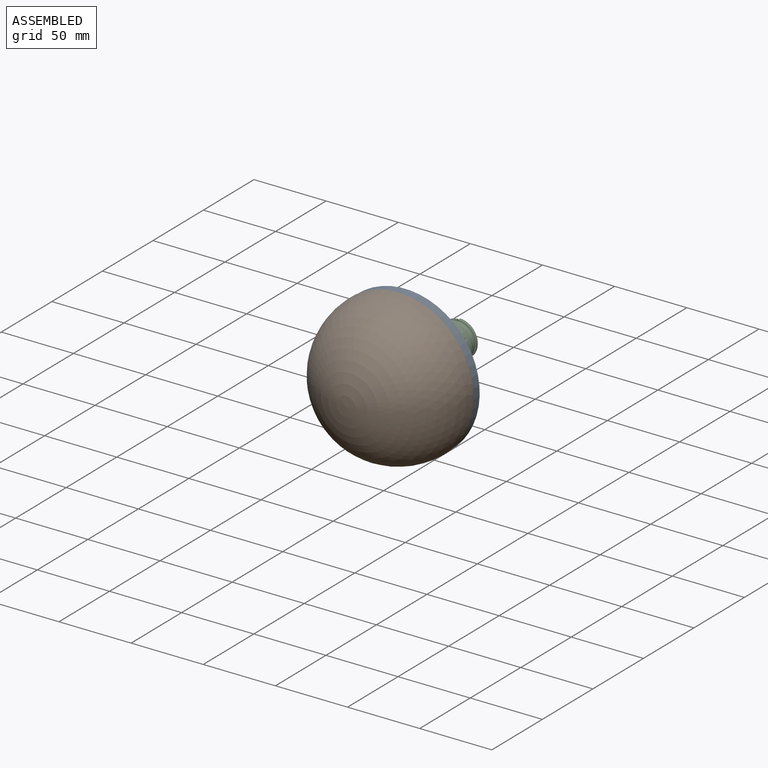
[diagram: assembled view]
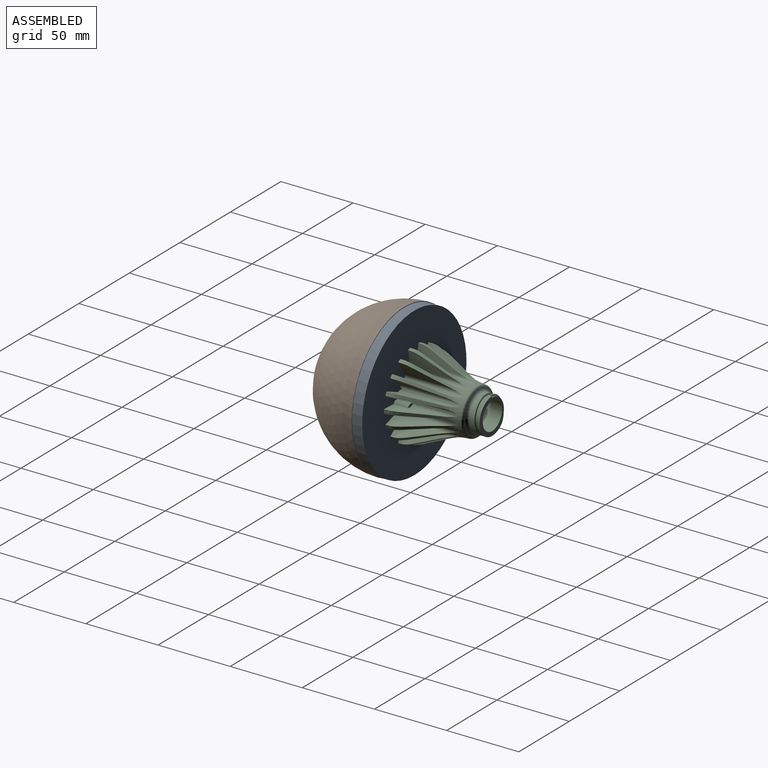
[diagram: assembled view, second angle]
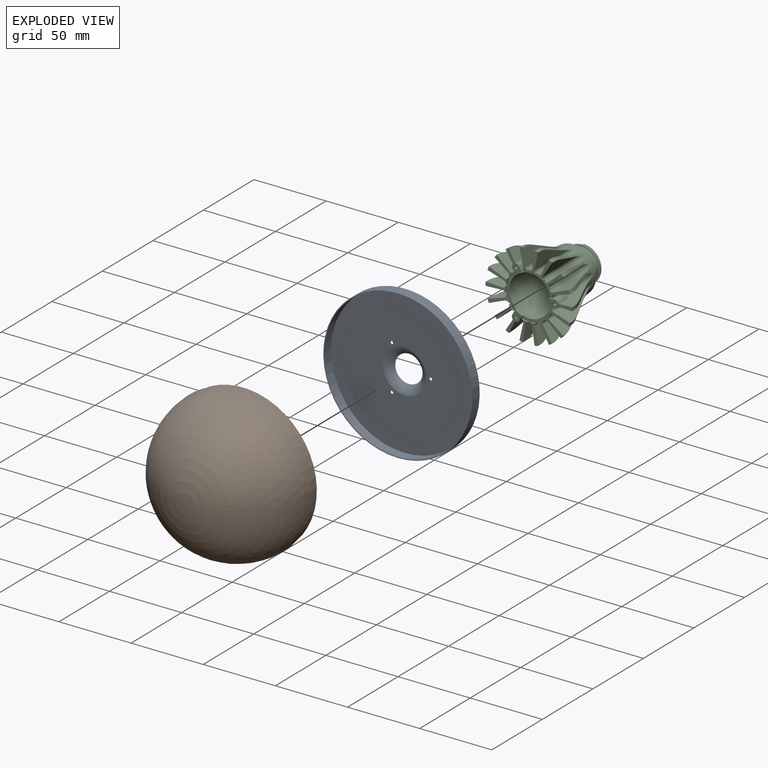
[diagram: exploded view]
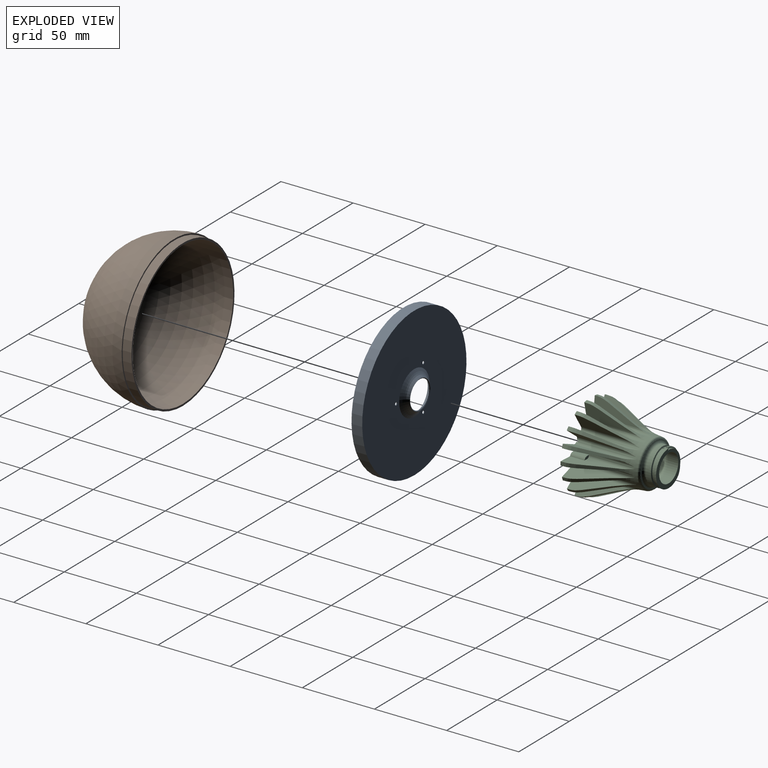
[diagram: exploded view, second angle]
ASSEMBLY  parts=3 mates=4
PART A: 11 faces, bbox 103.2x16.2x103.2 mm
  f0: cylinder r=1mm len=2mm, axis (0,1,0), area 3.8mm2, adj f4,f8
  f1: cylinder r=1mm len=2mm, axis (0,1,0), area 3.8mm2, adj f4,f8
  f2: plane 103.2x103.2mm, normal (0,-1,0), area 193.4mm2, adj f3,f9
  f3: cylinder r=51mm len=102mm, axis (0,-1,0), area 2183.2mm2, adj f2,f4
  f4: plane 102x102mm, normal (0,-1,0), area 7464mm2, adj f0,f1,f3,f5,f10
  f5: torus R=17.92mm, axis (0,-1,0), area 529.6mm2, adj f4,f6
  f6: cone r=9.49mm half-angle=58.9deg, axis (0,1,0), area 36.7mm2, adj f5,f7
  f7: torus R=17.92mm, axis (0,-1,0), area 503.8mm2, adj f6,f8
  f8: plane 103.2x103.2mm, normal (0,1,0), area 7648.4mm2, adj f0,f1,f7,f9,f10
  f9: cylinder r=51.6mm len=103.2mm, axis (0,-1,0), area 2403.4mm2, adj f2,f8
  f10: cylinder r=1mm len=2mm, axis (0,1,0), area 3.8mm2, adj f4,f8
PART B: 6 faces, bbox 104x58x104 mm
  f0: sphere r=49.75mm, area 15551.3mm2, adj f1
  f1: cylinder r=49.75mm len=99.5mm, axis (0,-1,0), area 1875.5mm2, adj f0,f2
  f2: plane 102x102mm, normal (0,1,0), area 395.6mm2, adj f1,f3
  f3: cylinder r=51mm len=102mm, axis (0,-1,0), area 1951.7mm2, adj f2,f4
  f4: plane 104x104mm, normal (0,1,0), area 323.6mm2, adj f3,f5
  f5: sphere r=52mm, area 16960.1mm2, adj f4
PART C: 175 faces, bbox 181x174.6x180.6 mm
  f0: cylinder r=12.5mm len=25mm, axis (0,-1,0), area 299.7mm2, adj f1,f171,f172,f173,f174
  f1: plane 4x1.25mm, normal (1,0,0), area 2.1mm2, adj f0,f2,f168,f169,f170,f171,f173
  f2: plane 25.07x24.08mm, normal (0,1,0), area 182.7mm2, adj f1,f3,f165,f166,f167,f168,f170
  f3: cylinder r=9.5mm len=19mm, axis (0,-1,0), area 426.3mm2, adj f2,f4
  f4: torus R=13.5mm, axis (0,-1,0), area 502mm2, adj f3,f5
  f5: cylinder r=14.25mm len=41.87mm, axis (0,-1,0), area 3748.6mm2, adj f4,f6,f160,f161,f162,f163,f164
  f6: plane 5.48x0.29mm, normal (0,1,0), area 0.1mm2, adj f5,f7,f158,f159
  f7: plane 10x3.83mm, normal (0,0,1), area 19.8mm2, adj f6,f8,f153,f154,f155,f158,f160
  f8: cylinder r=16.25mm len=40.48mm, axis (0,-1,0), area 41.2mm2, adj f7,f9,f148,f152,f153,f160
  f9: cylinder r=2mm len=41.48mm, axis (0,-1,0), area 99.7mm2, adj f8,f10,f11,f147,f148
  f10: plane 33.07x12.53mm, normal (0.3,0,-0.95), area 218.6mm2, adj f9,f11,f148
  f11: plane 14.27x8.11mm, normal (0,-1,0), area 29.1mm2, adj f9,f10,f12,f146,f147,f148
  f12: cylinder r=2mm len=41.48mm, axis (0,-1,0), area 99.7mm2, adj f11,f13,f146,f147,f148
  f13: cylinder r=16.25mm len=40.48mm, axis (0,-1,0), area 45.5mm2, adj f12,f14,f148,f160
  f14: cylinder r=2mm len=41.48mm, axis (0,-1,0), area 99.7mm2, adj f13,f15,f16,f145,f148
  f15: plane 33.07x10.54mm, normal (0.61,0,-0.79), area 218.6mm2, adj f14,f16,f148
  f16: plane 12.93x11.66mm, normal (0,-1,0), area 29.1mm2, adj f14,f15,f17,f144,f145,f148
  f17: cylinder r=2mm len=41.48mm, axis (0,-1,0), area 99.7mm2, adj f16,f18,f144,f145,f148
  f18: cylinder r=16.25mm len=40.48mm, axis (0,-1,0), area 45.5mm2, adj f17,f19,f148,f160
  f19: cylinder r=2mm len=41.48mm, axis (0,-1,0), area 99.7mm2, adj f18,f20,f21,f143,f148
  f20: plane 33.07x11.16mm, normal (0.84,0,-0.54), area 218.6mm2, adj f19,f21,f148
  f21: plane 13.81x10.04mm, normal (0,-1,0), area 29.1mm2, adj f19,f20,f22,f142,f143,f148
  f22: cylinder r=2mm len=41.48mm, axis (0,-1,0), area 99.7mm2, adj f21,f23,f142,f143,f148
  f23: cylinder r=16.25mm len=40.48mm, axis (0,-1,0), area 45.5mm2, adj f22,f24,f148,f160
  f24: cylinder r=2mm len=41.48mm, axis (0,-1,0), area 99.7mm2, adj f23,f25,f26,f141,f148
  f25: plane 33.07x12.81mm, normal (0.98,0,-0.22), area 218.6mm2, adj f24,f26,f148
  f26: plane 14.29x5.93mm, normal (0,-1,0), area 29.1mm2, adj f24,f25,f27,f140,f141,f148
  f27: cylinder r=2mm len=41.48mm, axis (0,-1,0), area 99.7mm2, adj f26,f28,f140,f141,f148
  f28: cylinder r=16.25mm len=40.48mm, axis (0,-1,0), area 45.5mm2, adj f27,f29,f148,f160
  f29: cylinder r=2mm len=41.48mm, axis (0,-1,0), area 99.7mm2, adj f28,f30,f31,f139,f148
  f30: plane 153.07x133mm, normal (0.99,0,0.13), area 218.6mm2, adj f29,f31,f148
  f31: plane 134.29x125.93mm, normal (0,-1,0), area 29.1mm2, adj f29,f30,f32,f138,f139,f148
  f32: cylinder r=2mm len=41.48mm, axis (0,-1,0), area 99.7mm2, adj f31,f33,f138,f139,f148
  f33: cylinder r=16.25mm len=40.48mm, axis (0,-1,0), area 41.2mm2, adj f32,f34,f136,f137,f148,f160
  f34: cylinder r=2mm len=31.48mm, axis (0,-1,0), area 72.7mm2, adj f33,f35,f137,f148
  f35: plane 33.07x11.71mm, normal (0.89,0,0.46), area 193.7mm2, adj f34,f36,f135,f137,f148
  f36: plane 15.89x11.52mm, normal (0,-1,0), area 50.5mm2, adj f35,f37,f38,f131,f132,f133,f135,f136
  f37: cylinder r=14.22mm len=4.75mm, axis (0,-1,0), area 5.5mm2, adj f36,f38,f136,f161
  f38: plane 10x3.32mm, normal (-0.87,0,-0.5), area 19.8mm2, adj f36,f37,f39,f130,f131,f161,f162
  f39: cylinder r=16.25mm len=40.48mm, axis (0,-1,0), area 41.2mm2, adj f38,f40,f129,f130,f148,f162
  f40: cylinder r=2mm len=41.48mm, axis (0,-1,0), area 99.7mm2, adj f39,f41,f42,f128,f148
  f41: plane 33.07x9.85mm, normal (0.68,0,0.74), area 218.6mm2, adj f40,f42,f148
  f42: plane 12.93x11.66mm, normal (0,-1,0), area 29.1mm2, adj f40,f41,f43,f127,f128,f148
  f43: cylinder r=2mm len=41.48mm, axis (0,-1,0), area 99.7mm2, adj f42,f44,f127,f128,f148
  f44: cylinder r=16.25mm len=40.48mm, axis (0,-1,0), area 45.5mm2, adj f43,f45,f148,f162
  f45: cylinder r=2mm len=41.48mm, axis (0,-1,0), area 99.7mm2, adj f44,f46,f47,f126,f148
  f46: plane 33.07x12.16mm, normal (0.38,0,0.92), area 218.6mm2, adj f45,f47,f148
  f47: plane 14.27x8.11mm, normal (0,-1,0), area 29.1mm2, adj f45,f46,f48,f125,f126,f148
  f48: cylinder r=2mm len=41.48mm, axis (0,-1,0), area 99.7mm2, adj f47,f49,f125,f126,f148
  f49: cylinder r=16.25mm len=40.48mm, axis (0,-1,0), area 45.5mm2, adj f48,f50,f148,f162
  f50: cylinder r=2mm len=41.48mm, axis (0,-1,0), area 99.7mm2, adj f49,f51,f52,f124,f148
  f51: plane 33.07x13.1mm, normal (0.04,0,1), area 218.6mm2, adj f50,f52,f148
  f52: plane 13.91x4.53mm, normal (0,-1,0), area 29.1mm2, adj f50,f51,f53,f123,f124,f148
  f53: cylinder r=2mm len=41.48mm, axis (0,-1,0), area 99.7mm2, adj f52,f54,f123,f124,f148
  f54: cylinder r=16.25mm len=40.48mm, axis (0,-1,0), area 45.5mm2, adj f53,f55,f148,f162
  f55: cylinder r=2mm len=41.48mm, axis (0,-1,0), area 99.7mm2, adj f54,f56,f57,f122,f148
  f56: plane 33.07x12.53mm, normal (-0.3,0,0.95), area 218.6mm2, adj f55,f57,f148
  f57: plane 14.27x8.11mm, normal (0,-1,0), area 29.1mm2, adj f55,f56,f58,f121,f122,f148
  f58: cylinder r=2mm len=41.48mm, axis (0,-1,0), area 99.7mm2, adj f57,f59,f121,f122,f148
  f59: cylinder r=16.25mm len=40.48mm, axis (0,-1,0), area 45.5mm2, adj f58,f60,f148,f162
  f60: cylinder r=2mm len=41.48mm, axis (0,-1,0), area 99.7mm2, adj f59,f61,f62,f120,f148
  f61: plane 33.07x10.54mm, normal (-0.61,0,0.79), area 218.6mm2, adj f60,f62,f148
  f62: plane 12.93x11.66mm, normal (0,-1,0), area 29.1mm2, adj f60,f61,f63,f119,f120,f148
  f63: cylinder r=2mm len=41.48mm, axis (0,-1,0), area 99.7mm2, adj f62,f64,f119,f120,f148
  f64: cylinder r=16.25mm len=40.48mm, axis (0,-1,0), area 41.2mm2, adj f63,f65,f117,f118,f148,f162
  f65: cylinder r=2mm len=31.48mm, axis (0,-1,0), area 72.7mm2, adj f64,f66,f118,f148
  f66: plane 33.07x11.16mm, normal (-0.84,0,0.54), area 193.7mm2, adj f65,f67,f68,f118,f148
  f67: cylinder r=2.75mm len=10mm, axis (0,-1,0), area 36.1mm2, adj f66,f68,f117,f118
  f68: plane 15.89x11.52mm, normal (0,-1,0), area 50.5mm2, adj f66,f67,f69,f70,f113,f114,f115,f117
  f69: cylinder r=14.22mm len=4.75mm, axis (0,-1,0), area 5.5mm2, adj f68,f70,f117,f163
  f70: plane 10x3.32mm, normal (0.87,0,-0.5), area 19.8mm2, adj f68,f69,f71,f112,f113,f163,f164
  f71: cylinder r=16.25mm len=40.48mm, axis (0,-1,0), area 41.2mm2, adj f70,f72,f111,f112,f148,f164
  f72: cylinder r=2mm len=41.48mm, axis (0,-1,0), area 99.7mm2, adj f71,f73,f74,f110,f148
  f73: plane 33.07x12.81mm, normal (-0.98,0,0.22), area 218.6mm2, adj f72,f74,f148
  f74: plane 14.29x5.93mm, normal (0,-1,0), area 29.1mm2, adj f72,f73,f75,f109,f110,f148
  f75: cylinder r=2mm len=41.48mm, axis (0,-1,0), area 99.7mm2, adj f74,f76,f109,f110,f148
  f76: cylinder r=16.25mm len=40.48mm, axis (0,-1,0), area 45.5mm2, adj f75,f77,f148,f164
  f77: cylinder r=2mm len=41.48mm, axis (0,-1,0), area 99.7mm2, adj f76,f78,f79,f108,f148
  f78: plane 33.07x13mm, normal (-0.99,0,-0.13), area 218.6mm2, adj f77,f79,f148
  f79: plane 14.29x5.93mm, normal (0,-1,0), area 29.1mm2, adj f77,f78,f80,f107,f108,f148
  f80: cylinder r=2mm len=41.48mm, axis (0,-1,0), area 99.7mm2, adj f79,f81,f107,f108,f148
  f81: cylinder r=16.25mm len=40.48mm, axis (0,-1,0), area 45.5mm2, adj f80,f82,f148,f164
  f82: cylinder r=2mm len=41.48mm, axis (0,-1,0), area 99.7mm2, adj f81,f83,f84,f106,f148
  f83: plane 33.07x11.71mm, normal (-0.89,0,-0.46), area 218.6mm2, adj f82,f84,f148
  f84: plane 13.81x10.04mm, normal (0,-1,0), area 29.1mm2, adj f82,f83,f85,f105,f106,f148
  f85: cylinder r=2mm len=41.48mm, axis (0,-1,0), area 99.7mm2, adj f84,f86,f105,f106,f148
  f86: cylinder r=16.25mm len=40.48mm, axis (0,-1,0), area 45.5mm2, adj f85,f87,f148,f164
  f87: cylinder r=2mm len=41.48mm, axis (0,-1,0), area 99.7mm2, adj f86,f88,f89,f104,f148
  f88: plane 33.07x9.85mm, normal (-0.68,0,-0.74), area 218.6mm2, adj f87,f89,f148
  f89: plane 12.93x11.66mm, normal (0,-1,0), area 29.1mm2, adj f87,f88,f90,f103,f104,f148
  f90: cylinder r=2mm len=41.48mm, axis (0,-1,0), area 99.7mm2, adj f89,f91,f103,f104,f148
  f91: cylinder r=16.25mm len=40.48mm, axis (0,-1,0), area 45.5mm2, adj f90,f92,f148,f164
  f92: cylinder r=2mm len=41.48mm, axis (0,-1,0), area 99.7mm2, adj f91,f93,f94,f102,f148
  f93: plane 33.07x12.16mm, normal (-0.38,0,-0.92), area 218.6mm2, adj f92,f94,f148
  f94: plane 14.27x8.11mm, normal (0,-1,0), area 29.1mm2, adj f92,f93,f95,f101,f102,f148
  f95: cylinder r=2mm len=41.48mm, axis (0,-1,0), area 99.7mm2, adj f94,f96,f101,f102,f148
  f96: cylinder r=16.25mm len=40.48mm, axis (0,-1,0), area 41.2mm2, adj f95,f97,f100,f148,f159,f164
  f97: cylinder r=2mm len=31.48mm, axis (0,-1,0), area 72.7mm2, adj f96,f98,f100,f148
  f98: plane 33.07x13.1mm, normal (-0.04,0,-1), area 193.7mm2, adj f97,f99,f100,f148,f155
  f99: cylinder r=2.75mm len=10mm, axis (0,-1,0), area 36.1mm2, adj f98,f100,f155,f159
  f100: plane 4.58x1.96mm, normal (0,1,0), area 6.7mm2, adj f96,f97,f98,f99,f159
  f101: plane 33.07x12.53mm, normal (0.3,0,0.95), area 218.6mm2, adj f94,f95,f148
  f102: cylinder r=16.25mm len=4.26mm, axis (0,-1,0), area 4.5mm2, adj f92,f94,f95,f164
  f103: plane 33.07x10.54mm, normal (0.61,0,0.79), area 218.6mm2, adj f89,f90,f148
  f104: cylinder r=16.25mm len=3.47mm, axis (0,-1,0), area 4.5mm2, adj f87,f89,f90,f164
  f105: plane 33.07x11.16mm, normal (0.84,0,0.54), area 218.6mm2, adj f84,f85,f148
  f106: cylinder r=16.25mm len=3.93mm, axis (0,-1,0), area 4.5mm2, adj f82,f84,f85,f164
  f107: plane 33.07x12.81mm, normal (0.98,0,0.22), area 218.6mm2, adj f79,f80,f148
  f108: cylinder r=16.25mm len=4.46mm, axis (0,-1,0), area 4.5mm2, adj f77,f79,f80,f164
  f109: plane 33.07x13mm, normal (0.99,0,-0.13), area 218.6mm2, adj f74,f75,f148
  f110: cylinder r=16.25mm len=4.46mm, axis (0,-1,0), area 4.5mm2, adj f72,f74,f75,f164
  f111: cylinder r=2mm len=31.48mm, axis (0,-1,0), area 72.7mm2, adj f71,f112,f114,f148
  f112: plane 3.89x3.34mm, normal (0,1,0), area 6.7mm2, adj f70,f71,f111,f113,f114
  f113: cylinder r=2.75mm len=10mm, axis (0,-1,0), area 36.1mm2, adj f68,f70,f112,f114
  f114: plane 33.07x11.71mm, normal (0.89,0,-0.46), area 193.7mm2, adj f68,f111,f112,f113,f148
  f115: cylinder r=1mm len=6mm, axis (0,-1,0), area 37.7mm2, adj f68,f116
  f116: cone r=0mm half-angle=59deg, axis (0,-1,0), area 3.7mm2, adj f115
  f117: plane 10x3.32mm, normal (-0.87,0,0.5), area 19.8mm2, adj f64,f67,f68,f69,f118,f162,f163
  f118: plane 4.89x2.32mm, normal (0,1,0), area 6.7mm2, adj f64,f65,f66,f67,f117
  f119: plane 33.07x9.85mm, normal (0.68,0,-0.74), area 218.6mm2, adj f62,f63,f148
  f120: cylinder r=16.25mm len=3.47mm, axis (0,-1,0), area 4.5mm2, adj f60,f62,f63,f162
  f121: plane 33.07x12.16mm, normal (0.38,0,-0.92), area 218.6mm2, adj f57,f58,f148
  f122: cylinder r=16.25mm len=4.26mm, axis (0,-1,0), area 4.5mm2, adj f55,f57,f58,f162
  f123: plane 33.07x13.1mm, normal (0.04,0,-1), area 218.6mm2, adj f52,f53,f148
  f124: cylinder r=16.25mm len=4.53mm, axis (0,-1,0), area 4.5mm2, adj f50,f52,f53,f162
  f125: plane 33.07x12.53mm, normal (-0.3,0,-0.95), area 218.6mm2, adj f47,f48,f148
  f126: cylinder r=16.25mm len=4.26mm, axis (0,-1,0), area 4.5mm2, adj f45,f47,f48,f162
  f127: plane 33.07x10.54mm, normal (-0.61,0,-0.79), area 218.6mm2, adj f42,f43,f148
  f128: cylinder r=16.25mm len=3.47mm, axis (0,-1,0), area 4.5mm2, adj f40,f42,f43,f162
  f129: cylinder r=2mm len=31.48mm, axis (0,-1,0), area 72.7mm2, adj f39,f130,f132,f148
  f130: plane 4.89x2.32mm, normal (0,1,0), area 6.7mm2, adj f38,f39,f129,f131,f132
  f131: cylinder r=2.75mm len=10mm, axis (0,-1,0), area 36.1mm2, adj f36,f38,f130,f132
  f132: plane 33.07x11.16mm, normal (-0.84,0,-0.54), area 193.7mm2, adj f36,f129,f130,f131,f148
  f133: cylinder r=1mm len=6mm, axis (0,-1,0), area 37.7mm2, adj f36,f134
  f134: cone r=0mm half-angle=59deg, axis (0,-1,0), area 3.7mm2, adj f133
  f135: cylinder r=2.75mm len=10mm, axis (0,-1,0), area 36.1mm2, adj f35,f36,f136,f137
  f136: plane 10x3.32mm, normal (0.87,0,0.5), area 19.8mm2, adj f33,f36,f37,f135,f137,f160,f161
  f137: plane 3.89x3.34mm, normal (0,1,0), area 6.7mm2, adj f33,f34,f35,f135,f136
  f138: plane 33.07x12.81mm, normal (-0.98,0,-0.22), area 218.6mm2, adj f31,f32,f148
  f139: cylinder r=16.25mm len=4.46mm, axis (0,-1,0), area 4.5mm2, adj f29,f31,f32,f160
  f140: plane 33.07x13mm, normal (-0.99,0,0.13), area 218.6mm2, adj f26,f27,f148
  f141: cylinder r=16.25mm len=4.46mm, axis (0,-1,0), area 4.5mm2, adj f24,f26,f27,f160
  f142: plane 33.07x11.71mm, normal (-0.89,0,0.46), area 218.6mm2, adj f21,f22,f148
  f143: cylinder r=16.25mm len=3.93mm, axis (0,-1,0), area 4.5mm2, adj f19,f21,f22,f160
  f144: plane 33.07x9.85mm, normal (-0.68,0,0.74), area 218.6mm2, adj f16,f17,f148
  f145: cylinder r=16.25mm len=3.47mm, axis (0,-1,0), area 4.5mm2, adj f14,f16,f17,f160
  f146: plane 33.07x12.16mm, normal (-0.38,0,0.92), area 218.6mm2, adj f11,f12,f148
  f147: cylinder r=16.25mm len=4.26mm, axis (0,-1,0), area 4.5mm2, adj f9,f11,f12,f160
  f148: revolved ~59.95x59.88mm, area 3168.7mm2, adj f8,f9,f10,f11,f12,f13,f14,f15
  f149: torus R=14.5mm, axis (0,-1,0), area 191.7mm2, adj f148,f150
  f150: cone r=14.62mm half-angle=85.7deg, axis (0,-1,0), area 24.5mm2, adj f149,f174
  f151: plane 33.07x13.1mm, normal (-0.04,0,1), area 193.7mm2, adj f148,f152,f153,f154,f155
  f152: cylinder r=2mm len=31.48mm, axis (0,-1,0), area 72.7mm2, adj f8,f148,f151,f153
  f153: plane 4.58x1.96mm, normal (0,1,0), area 6.7mm2, adj f7,f8,f151,f152,f154
  f154: cylinder r=2.75mm len=10mm, axis (0,-1,0), area 36.1mm2, adj f7,f151,f153,f155
  f155: plane 16.04x5.5mm, normal (0,-1,0), area 50.5mm2, adj f7,f98,f99,f148,f151,f154,f156,f158
  f156: cylinder r=1mm len=6mm, axis (0,-1,0), area 37.7mm2, adj f155,f157
  f157: cone r=0mm half-angle=59deg, axis (0,-1,0), area 3.7mm2, adj f156
  f158: cylinder r=14.22mm len=5.48mm, axis (0,-1,0), area 5.5mm2, adj f6,f7,f155,f159
  f159: plane 10x3.83mm, normal (0,0,-1), area 19.8mm2, adj f6,f96,f99,f100,f155,f158,f164
  f160: plane 21.65x13.51mm, normal (0,-1,0), area 52.9mm2, adj f5,f7,f8,f13,f18,f23,f28,f33
  f161: plane 4.76x2.77mm, normal (0,1,0), area 0.1mm2, adj f5,f37,f38,f136
  f162: plane 25x6.88mm, normal (0,-1,0), area 52.9mm2, adj f5,f38,f39,f44,f49,f54,f59,f64
  f163: plane 4.76x2.77mm, normal (0,1,0), area 0.1mm2, adj f5,f69,f70,f117
  f164: plane 21.65x13.51mm, normal (0,-1,0), area 52.9mm2, adj f5,f70,f71,f76,f81,f86,f91,f96
  f165: bspline ~28.87x25mm, area 52.5mm2, adj f2,f166,f167,f170
  f166: cylinder r=12.5mm len=25mm, axis (0,-1,0), area 50.9mm2, adj f2,f165,f167
  f167: plane 4x1.25mm, normal (-1,0,0), area 3.2mm2, adj f2,f165,f166,f168,f169,f170
  f168: plane 4x0.6mm, normal (0,0,1), area 2.4mm2, adj f1,f2,f167,f169
  f169: plane 0.6x0.25mm, normal (0,1,0), area 0.2mm2, adj f1,f167,f168,f170
  f170: cylinder r=11.5mm len=23mm, axis (0,-1,0), area 152mm2, adj f1,f2,f165,f167,f169,f171,f172,f173
  f171: bspline ~18.75x14.43mm, area 19.1mm2, adj f0,f1,f170,f172
  f172: plane 2.3x1mm, normal (0,0,1), area 2.1mm2, adj f0,f170,f171,f173
  f173: bspline ~28.87x25mm, area 96.9mm2, adj f0,f1,f170,f172
  f174: torus R=14.5mm, axis (0,-1,0), area 247.5mm2, adj f0,f150
PLACE A t=(-64.68,-107.68,-23.42)mm
PLACE B t=(-64.68,-108.64,-23.42)mm
PLACE C t=(-64.68,-107.68,-23.42)mm
MATE planar C.f11 <-> A.f3  axis (0,-1,0) through (-42.64,-107.68,-15.4)mm
MATE cylindrical B.f1 <-> A.f3  axis (0,-1,0) through (-64.68,-111.68,-23.42)mm
MATE cylindrical B.f1 <-> A.f3  axis (0,-1,0) through (-64.68,-111.68,-23.42)mm
MATE cylindrical C.f156 <-> A.f10  axis (0,-1,0) through (-46.68,-104.68,-23.42)mm
